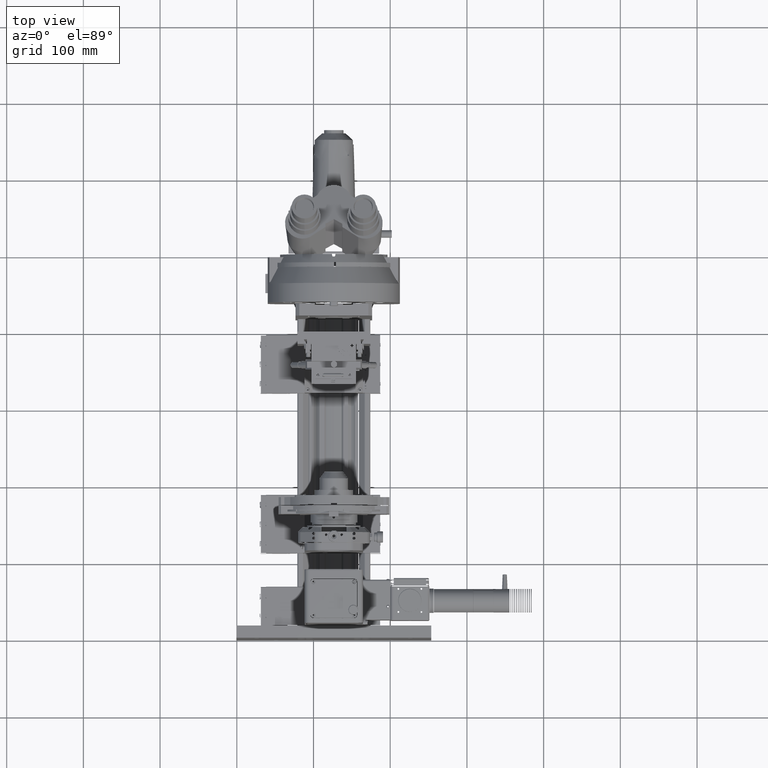
[diagram: clean part render]
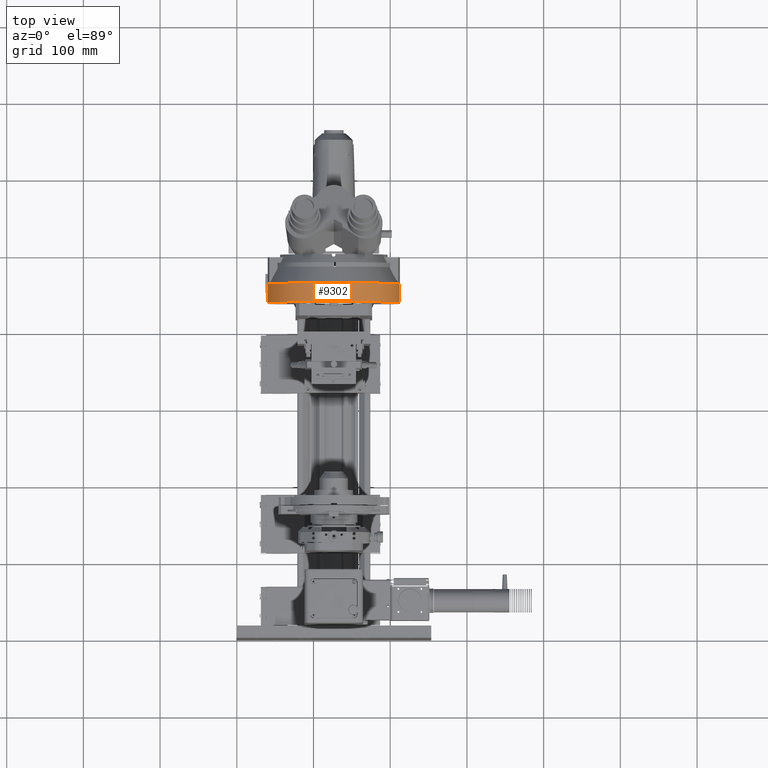
[diagram: same view with one face highlighted and labeled with its STEP entity id]
A machine part, top view. The second image highlights one B-rep face of the part: STEP entity #9302.
In plain terms, the highlighted cylindrical surface (partial cylindrical patch) has radius 86.106 mm, axis along (0, -1, 0).
Its self-contained STEP definition (entity closure, byte-faithful):
#5034 = CARTESIAN_POINT ( 'NONE',  ( -59.65198529868232000, 58.43222194330170500, 512.9868427253314800 ) ) ;
#6808 = DIRECTION ( 'NONE',  ( 8.580826596270716200E-020, -1.000000000000000000, 9.832653366437110100E-018 ) ) ;
#6919 = LINE ( 'NONE', #44767, #96920 ) ;
#9302 = ADVANCED_FACE ( 'NONE', ( #79785 ), #127720, .T. ) ;
#11117 = AXIS2_PLACEMENT_3D ( 'NONE', #17380, #99628, #29192 ) ;
#16379 = CIRCLE ( 'NONE', #11117, 86.10600000000002300 ) ;
#17380 = CARTESIAN_POINT ( 'NONE',  ( 26.45401470131769600, 58.43222194330170500, 512.9868427253219400 ) ) ;
#17875 = CARTESIAN_POINT ( 'NONE',  ( -59.65198529868232000, 34.02282194330170000, 512.9868427253314800 ) ) ;
#19772 = EDGE_CURVE ( 'NONE', #59319, #68866, #24960, .T. ) ;
#23242 = ORIENTED_EDGE ( 'NONE', *, *, #19772, .T. ) ;
#23548 = CARTESIAN_POINT ( 'NONE',  ( 26.45401470131769600, 58.43222194330170500, 512.9868427253219400 ) ) ;
#24004 = EDGE_CURVE ( 'NONE', #77792, #128812, #6919, .T. ) ;
#24960 = LINE ( 'NONE', #5034, #48877 ) ;
#29192 = DIRECTION ( 'NONE',  ( -1.000000000000000000, 0.0000000000000000000, 1.121749972619661700E-013 ) ) ;
#35123 = CARTESIAN_POINT ( 'NONE',  ( 112.5600147013177400, 58.43222194330172700, 512.9868427253121600 ) ) ;
#37423 = CIRCLE ( 'NONE', #109327, 86.10600000000002300 ) ;
#40343 = DIRECTION ( 'NONE',  ( 8.580826596270717400E-020, -1.000000000000000000, 9.832653366437110100E-018 ) ) ;
#43923 = EDGE_LOOP ( 'NONE', ( #143623, #23242, #101372, #61638 ) ) ;
#44767 = CARTESIAN_POINT ( 'NONE',  ( 112.5600147013177400, 58.43222194330170500, 512.9868427253121600 ) ) ;
#48877 = VECTOR ( 'NONE', #40343, 1000.000000000000000 ) ;
#59319 = VERTEX_POINT ( 'NONE', #90435 ) ;
#61638 = ORIENTED_EDGE ( 'NONE', *, *, #24004, .F. ) ;
#68866 = VERTEX_POINT ( 'NONE', #17875 ) ;
#75643 = DIRECTION ( 'NONE',  ( 8.580826596270717400E-020, -1.000000000000000000, 9.832653366437110100E-018 ) ) ;
#77176 = CARTESIAN_POINT ( 'NONE',  ( 26.45401470131769600, 34.02282194330170000, 512.9868427253219400 ) ) ;
#77792 = VERTEX_POINT ( 'NONE', #35123 ) ;
#79024 = CARTESIAN_POINT ( 'NONE',  ( 112.5600147013177400, 34.02282194330170000, 512.9868427253121600 ) ) ;
#79785 = FACE_OUTER_BOUND ( 'NONE', #43923, .T. ) ;
#88981 = DIRECTION ( 'NONE',  ( -1.000000000000000000, 0.0000000000000000000, 1.121749972619661700E-013 ) ) ;
#90435 = CARTESIAN_POINT ( 'NONE',  ( -59.65198529868232000, 58.43222194330163400, 512.9868427253316000 ) ) ;
#91257 = EDGE_CURVE ( 'NONE', #128812, #68866, #37423, .T. ) ;
#96920 = VECTOR ( 'NONE', #127223, 1000.000000000000000 ) ;
#99628 = DIRECTION ( 'NONE',  ( 8.580826596270716200E-020, -1.000000000000000000, 9.832653366437110100E-018 ) ) ;
#101372 = ORIENTED_EDGE ( 'NONE', *, *, #91257, .F. ) ;
#109327 = AXIS2_PLACEMENT_3D ( 'NONE', #77176, #6808, #88981 ) ;
#110099 = AXIS2_PLACEMENT_3D ( 'NONE', #23548, #75643, #146747 ) ;
#127223 = DIRECTION ( 'NONE',  ( 8.580826596270717400E-020, -1.000000000000000000, 9.832653366437110100E-018 ) ) ;
#127720 = CYLINDRICAL_SURFACE ( 'NONE', #110099, 86.10600000000002300 ) ;
#128812 = VERTEX_POINT ( 'NONE', #79024 ) ;
#141189 = EDGE_CURVE ( 'NONE', #77792, #59319, #16379, .T. ) ;
#143623 = ORIENTED_EDGE ( 'NONE', *, *, #141189, .T. ) ;
#146747 = DIRECTION ( 'NONE',  ( 1.000000000000000000, 0.0000000000000000000, -1.121749972619661700E-013 ) ) ;